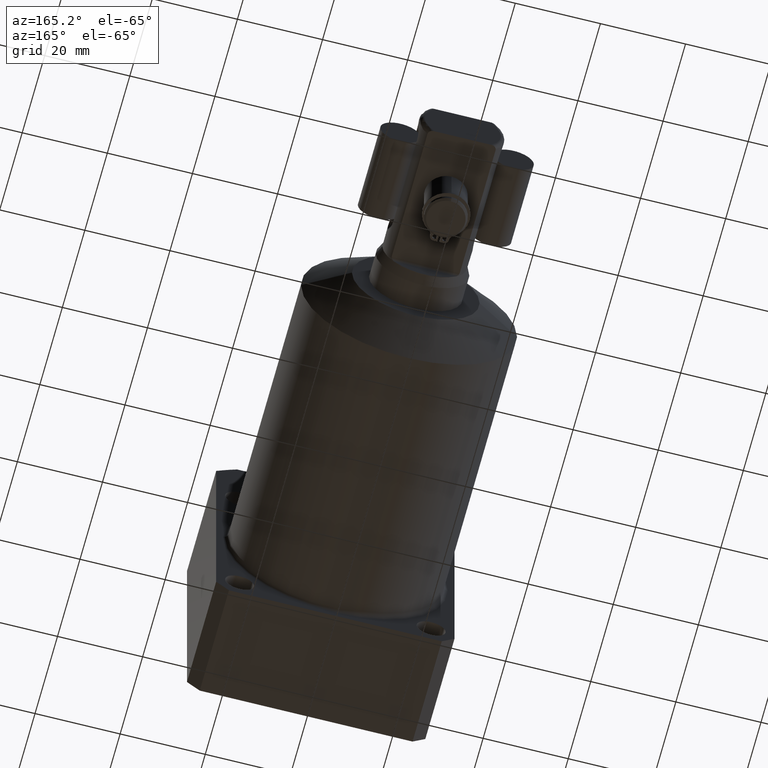
[diagram: clean part render]
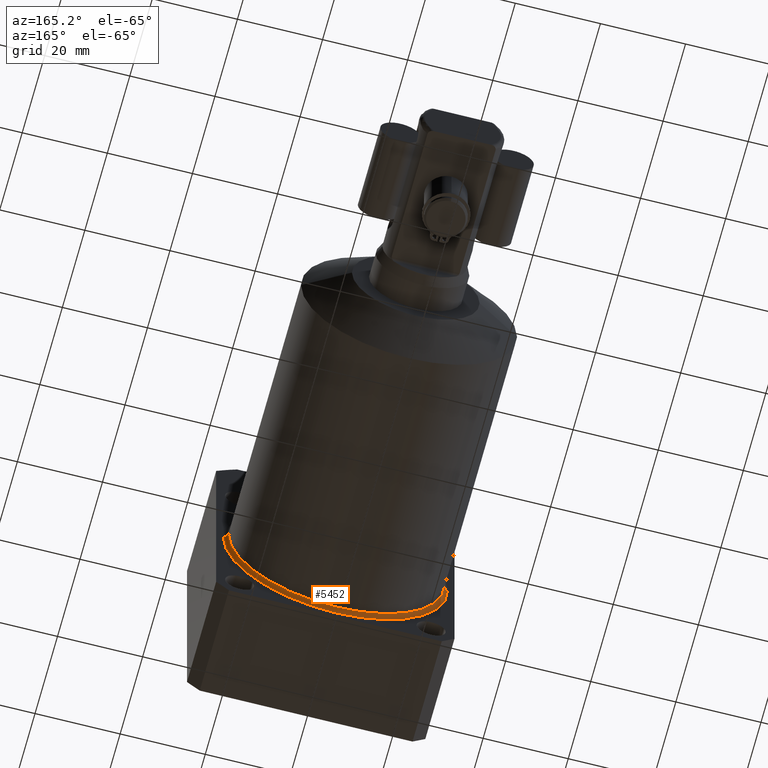
[diagram: same view with one face highlighted and labeled with its STEP entity id]
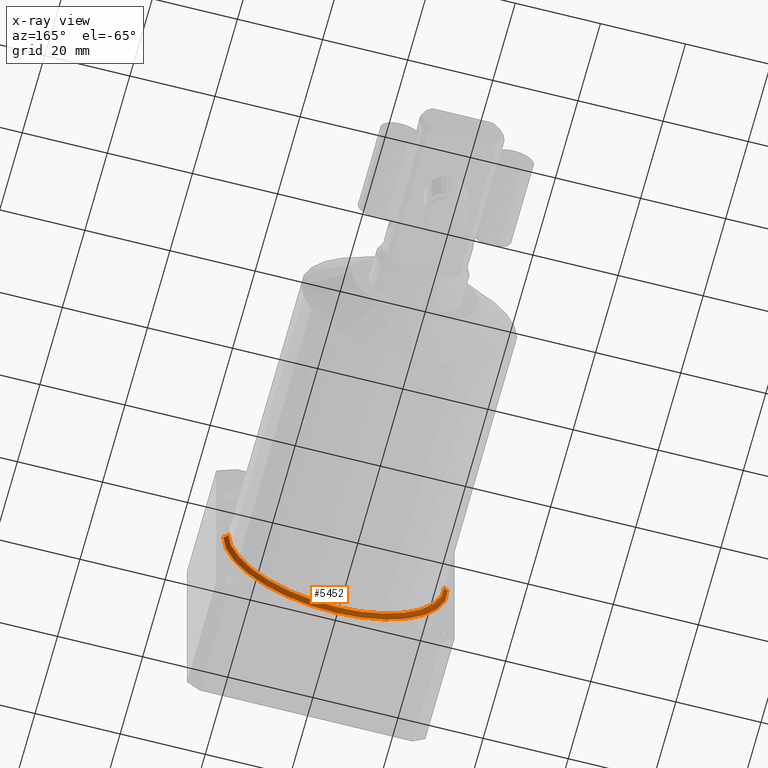
[diagram: x-ray of the same camera — body ghosted, the highlighted face saturated]
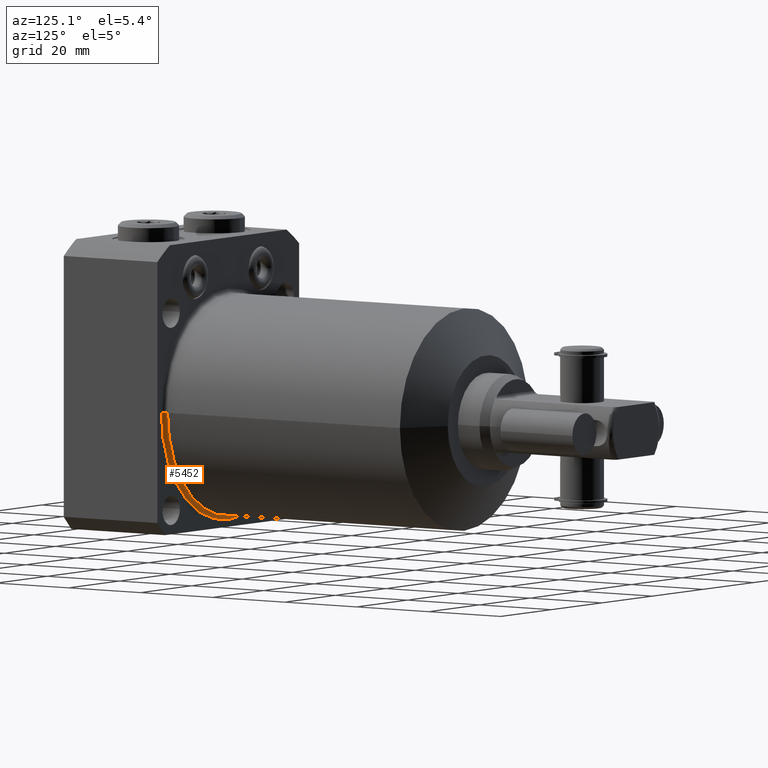
[diagram: same view with one face highlighted and labeled with its STEP entity id]
A machine part, auxiliary view. The second image highlights one B-rep face of the part: STEP entity #5452.
The next image is the same camera in x-ray: the body ghosted, the highlighted face saturated — about 0% of this face is hidden behind the body in this view.
A second angle (auxiliary view) of the same face is appended — the face is thin or edge-on in the first view.
In plain terms, the highlighted toroidal blend (fillet) surface has major radius 26.385 mm and minor (blend) radius 1 mm.
Its self-contained STEP definition (entity closure, byte-faithful):
#1532=CARTESIAN_POINT('',(0.E0,1.E0,0.E0));
#1533=DIRECTION('',(0.E0,1.E0,0.E0));
#1534=DIRECTION('',(1.E0,0.E0,0.E0));
#1535=AXIS2_PLACEMENT_3D('',#1532,#1533,#1534);
#1547=CARTESIAN_POINT('',(2.6385E1,1.E0,2.853273173287E-14));
#1548=DIRECTION('',(0.E0,0.E0,-1.E0));
#1549=DIRECTION('',(-1.172395514004E-13,-1.E0,0.E0));
#1550=AXIS2_PLACEMENT_3D('',#1547,#1548,#1549);
#1555=CARTESIAN_POINT('',(0.E0,7.949196856316E-14,0.E0));
#1556=DIRECTION('',(0.E0,1.E0,0.E0));
#1557=DIRECTION('',(1.E0,0.E0,0.E0));
#1558=AXIS2_PLACEMENT_3D('',#1555,#1556,#1557);
#1709=CARTESIAN_POINT('',(-2.6385E1,1.E0,-3.180788965551E-14));
#1710=DIRECTION('',(0.E0,0.E0,1.E0));
#1711=DIRECTION('',(1.172395514004E-13,-1.E0,0.E0));
#1712=AXIS2_PLACEMENT_3D('',#1709,#1710,#1711);
#3827=CARTESIAN_POINT('',(2.638499960128E1,7.464512276708E-14,0.E0));
#3828=CARTESIAN_POINT('',(-2.638499960128E1,8.433881435924E-14,0.E0));
#3829=VERTEX_POINT('',#3827);
#3830=VERTEX_POINT('',#3828);
#3831=CARTESIAN_POINT('',(2.5385E1,1.E0,0.E0));
#3832=CARTESIAN_POINT('',(-2.5385E1,1.E0,0.E0));
#3833=VERTEX_POINT('',#3831);
#3834=VERTEX_POINT('',#3832);
#5438=CARTESIAN_POINT('',(0.E0,1.E0,0.E0));
#5439=DIRECTION('',(0.E0,-1.E0,0.E0));
#5440=DIRECTION('',(9.999062551662E-1,0.E0,1.369236574065E-2));
#5441=AXIS2_PLACEMENT_3D('',#5438,#5439,#5440);
#5442=TOROIDAL_SURFACE('',#5441,2.6385E1,1.E0);
#5444=ORIENTED_EDGE('',*,*,#5443,.F.);
#5446=ORIENTED_EDGE('',*,*,#5445,.T.);
#5447=ORIENTED_EDGE('',*,*,#5432,.T.);
#5449=ORIENTED_EDGE('',*,*,#5448,.F.);
#5450=EDGE_LOOP('',(#5444,#5446,#5447,#5449));
#5451=FACE_OUTER_BOUND('',#5450,.F.);
#1536=CIRCLE('',#1535,2.5385E1);
#1551=CIRCLE('',#1550,1.E0);
#1559=CIRCLE('',#1558,2.638499960128E1);
#1713=CIRCLE('',#1712,1.E0);
#5432=EDGE_CURVE('',#3833,#3834,#1536,.T.);
#5443=EDGE_CURVE('',#3829,#3830,#1559,.T.);
#5445=EDGE_CURVE('',#3829,#3833,#1551,.T.);
#5448=EDGE_CURVE('',#3830,#3834,#1713,.T.);
#5452=ADVANCED_FACE('',(#5451),#5442,.F.);